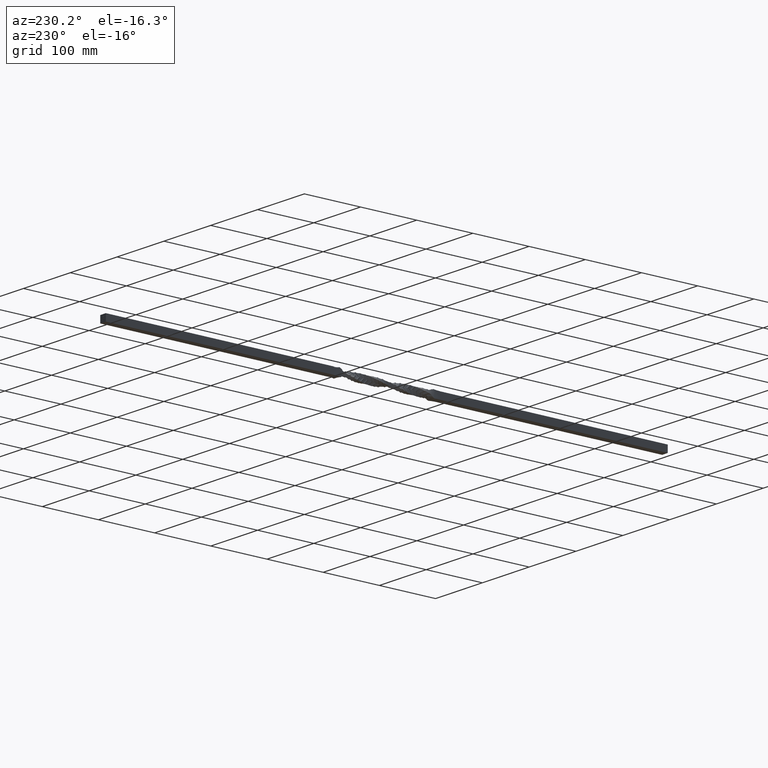
[diagram: clean part render]
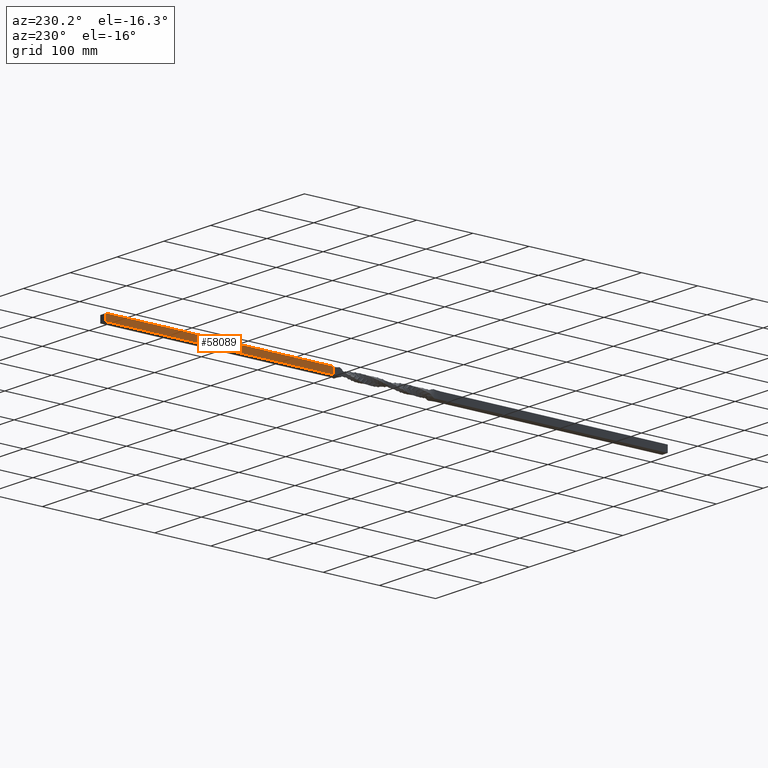
[diagram: same view with one face highlighted and labeled with its STEP entity id]
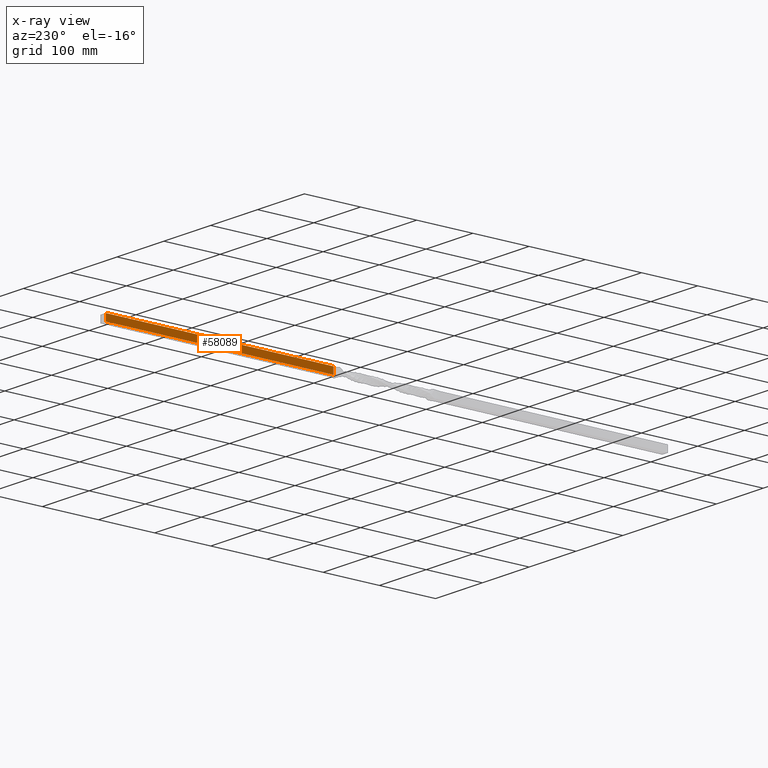
[diagram: x-ray of the same camera — body ghosted, the highlighted face saturated]
A machine part, auxiliary view. The second image highlights one B-rep face of the part: STEP entity #58089.
The next image is the same camera in x-ray: the body ghosted, the highlighted face saturated — about 0% of this face is hidden behind the body in this view.
In plain terms, the highlighted planar face has unit normal (1, -0, 0).
Its self-contained STEP definition (entity closure, byte-faithful):
#4588 = VECTOR ( 'NONE', #86960, 1000.000000000000000 ) ;
#10403 = ORIENTED_EDGE ( 'NONE', *, *, #27654, .T. ) ;
#12976 = CARTESIAN_POINT ( 'NONE',  ( -5.999999999999988454, 170.0000000000000000, 6.000000000000008882 ) ) ;
#15992 = EDGE_CURVE ( 'NONE', #61365, #29520, #16940, .T. ) ;
#16940 = LINE ( 'NONE', #19974, #46350 ) ;
#19974 = CARTESIAN_POINT ( 'NONE',  ( -5.999999999999988454, 170.0000000000000000, 6.000000000000008882 ) ) ;
#20085 = EDGE_CURVE ( 'NONE', #30248, #29520, #83036, .T. ) ;
#20599 = ORIENTED_EDGE ( 'NONE', *, *, #15992, .T. ) ;
#24078 = EDGE_LOOP ( 'NONE', ( #10403, #49899, #20599, #25055, #75212, #86570 ) ) ;
#24295 = DIRECTION ( 'NONE',  ( -0.000000000000000000, -1.000000000000000000, -0.000000000000000000 ) ) ;
#25055 = ORIENTED_EDGE ( 'NONE', *, *, #20085, .F. ) ;
#25243 = VECTOR ( 'NONE', #24295, 1000.000000000000000 ) ;
#27654 = EDGE_CURVE ( 'NONE', #32604, #59448, #49476, .T. ) ;
#29520 = VERTEX_POINT ( 'NONE', #80586 ) ;
#30248 = VERTEX_POINT ( 'NONE', #82708 ) ;
#32604 = VERTEX_POINT ( 'NONE', #84189 ) ;
#32910 = DIRECTION ( 'NONE',  ( -0.000000000000000000, -0.000000000000000000, 1.000000000000000000 ) ) ;
#37545 = CARTESIAN_POINT ( 'NONE',  ( -5.999999999999988454, 170.0000000000000000, 6.000000000000008882 ) ) ;
#38561 = CARTESIAN_POINT ( 'NONE',  ( -6.000000000000011546, 575.0000000000001137, 5.999999999999991118 ) ) ;
#38645 = EDGE_CURVE ( 'NONE', #55248, #30248, #49310, .T. ) ;
#45030 = EDGE_CURVE ( 'NONE', #59448, #61365, #68132, .T. ) ;
#45340 = DIRECTION ( 'NONE',  ( 0.000000000000000000, 0.000000000000000000, -1.000000000000000000 ) ) ;
#46172 = CARTESIAN_POINT ( 'NONE',  ( -6.000000000000011546, 575.0000000000001137, 5.999999999999991118 ) ) ;
#46350 = VECTOR ( 'NONE', #32910, 1000.000000000000000 ) ;
#46561 = CARTESIAN_POINT ( 'NONE',  ( -5.999999999999988454, 170.0000000000000000, 4.146749010311415518 ) ) ;
#49310 = LINE ( 'NONE', #84319, #60844 ) ;
#49476 = LINE ( 'NONE', #37545, #51601 ) ;
#49519 = AXIS2_PLACEMENT_3D ( 'NONE', #38561, #77881, #45340 ) ;
#49899 = ORIENTED_EDGE ( 'NONE', *, *, #45030, .T. ) ;
#51601 = VECTOR ( 'NONE', #71249, 1000.000000000000000 ) ;
#55248 = VERTEX_POINT ( 'NONE', #56498 ) ;
#56498 = CARTESIAN_POINT ( 'NONE',  ( -6.000000000000011546, 575.0000000000001137, -5.999999999999991118 ) ) ;
#58089 = ADVANCED_FACE ( 'NONE', ( #63497 ), #79040, .F. ) ;
#59040 = CARTESIAN_POINT ( 'NONE',  ( -5.999999999999988454, 170.0000000000000000, 4.597368674749411355 ) ) ;
#59448 = VERTEX_POINT ( 'NONE', #46561 ) ;
#60844 = VECTOR ( 'NONE', #78104, 1000.000000000000000 ) ;
#61365 = VERTEX_POINT ( 'NONE', #59040 ) ;
#61932 = LINE ( 'NONE', #77085, #25243 ) ;
#63497 = FACE_OUTER_BOUND ( 'NONE', #24078, .T. ) ;
#67186 = DIRECTION ( 'NONE',  ( -0.000000000000000000, -0.000000000000000000, 1.000000000000000000 ) ) ;
#68132 = LINE ( 'NONE', #12976, #76583 ) ;
#71249 = DIRECTION ( 'NONE',  ( -0.000000000000000000, -0.000000000000000000, 1.000000000000000000 ) ) ;
#75212 = ORIENTED_EDGE ( 'NONE', *, *, #38645, .F. ) ;
#76583 = VECTOR ( 'NONE', #67186, 1000.000000000000000 ) ;
#77085 = CARTESIAN_POINT ( 'NONE',  ( -6.000000000000011546, 575.0000000000001137, -5.999999999999991118 ) ) ;
#77881 = DIRECTION ( 'NONE',  ( 1.000000000000000000, -0.000000000000000000, 0.000000000000000000 ) ) ;
#78104 = DIRECTION ( 'NONE',  ( -0.000000000000000000, -0.000000000000000000, 1.000000000000000000 ) ) ;
#79040 = PLANE ( 'NONE',  #49519 ) ;
#80586 = CARTESIAN_POINT ( 'NONE',  ( -5.999999999999988454, 170.0000000000000000, 6.000000000000008882 ) ) ;
#82708 = CARTESIAN_POINT ( 'NONE',  ( -6.000000000000011546, 575.0000000000001137, 5.999999999999991118 ) ) ;
#83036 = LINE ( 'NONE', #46172, #4588 ) ;
#84189 = CARTESIAN_POINT ( 'NONE',  ( -5.999999999999988454, 170.0000000000000000, -5.999999999999991118 ) ) ;
#84319 = CARTESIAN_POINT ( 'NONE',  ( -6.000000000000011546, 575.0000000000001137, 5.999999999999991118 ) ) ;
#86570 = ORIENTED_EDGE ( 'NONE', *, *, #86670, .T. ) ;
#86670 = EDGE_CURVE ( 'NONE', #55248, #32604, #61932, .T. ) ;
#86960 = DIRECTION ( 'NONE',  ( -0.000000000000000000, -1.000000000000000000, -0.000000000000000000 ) ) ;